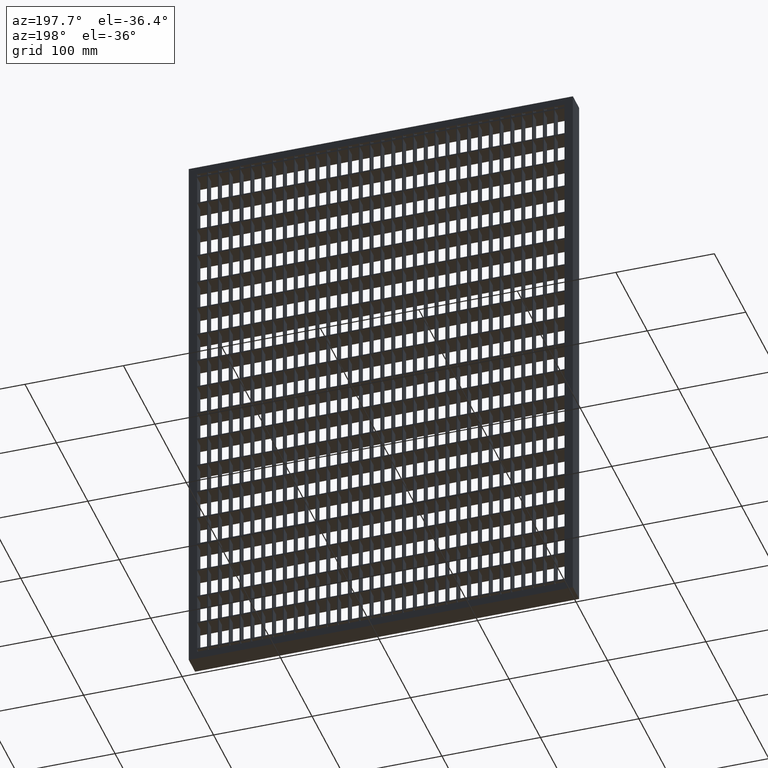
[diagram: clean part render]
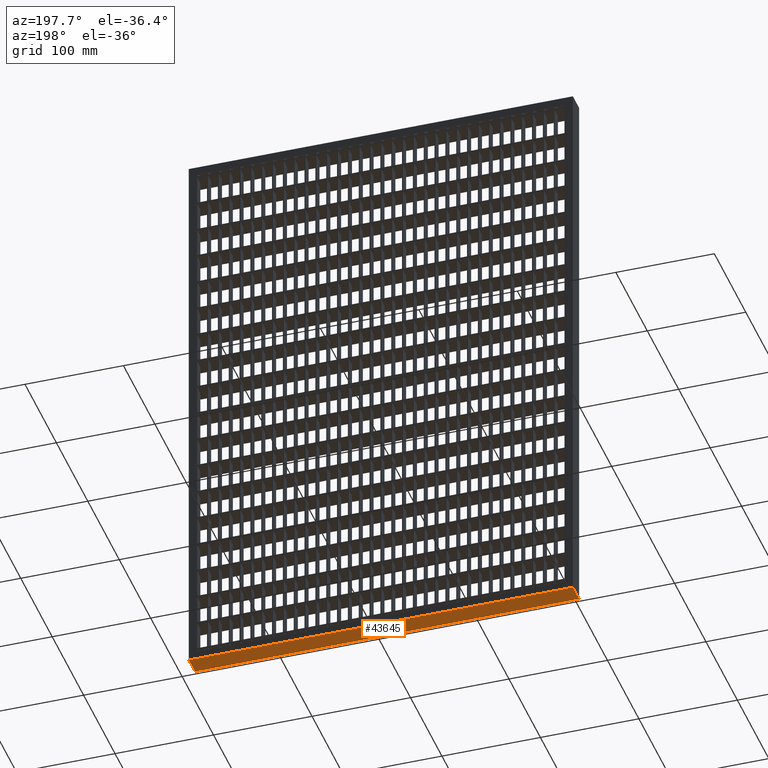
[diagram: same view with one face highlighted and labeled with its STEP entity id]
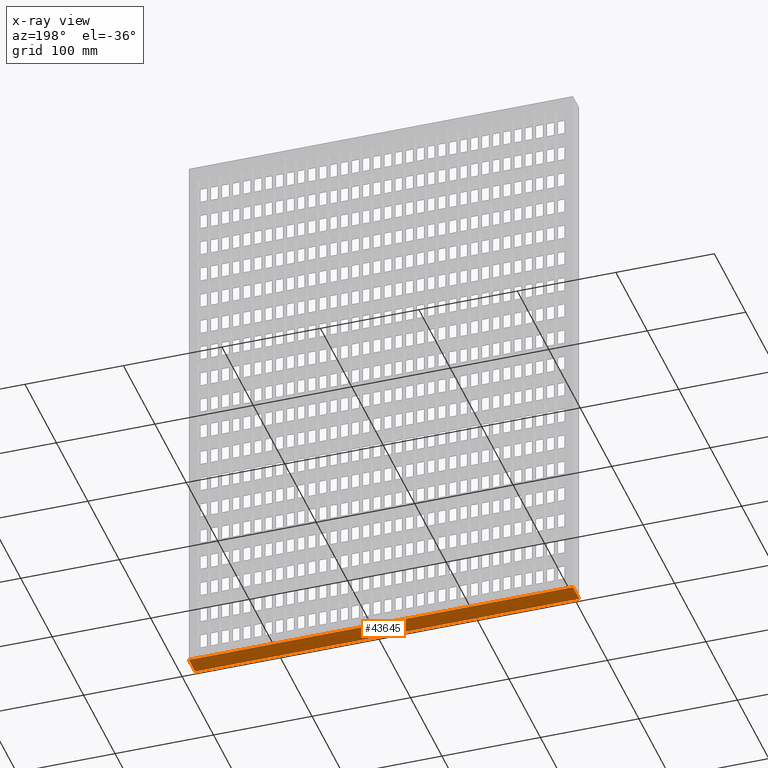
[diagram: x-ray of the same camera — body ghosted, the highlighted face saturated]
A machine part, auxiliary view. The second image highlights one B-rep face of the part: STEP entity #43645.
The next image is the same camera in x-ray: the body ghosted, the highlighted face saturated — about 0% of this face is hidden behind the body in this view.
In plain terms, the highlighted planar face has unit normal (-0, 0, 1).
Its self-contained STEP definition (entity closure, byte-faithful):
#63 = EDGE_CURVE ( 'NONE', #39504, #46756, #59235, .T. ) ;
#1682 = EDGE_CURVE ( 'NONE', #39504, #88319, #49802, .T. ) ;
#2566 = VECTOR ( 'NONE', #74039, 1000.000000000000000 ) ;
#4561 = DIRECTION ( 'NONE',  ( 3.061616997868382600E-016, 1.000000000000000000, -3.061616997868382600E-016 ) ) ;
#6208 = VECTOR ( 'NONE', #18565, 1000.000000000000000 ) ;
#13974 = CARTESIAN_POINT ( 'NONE',  ( 3.061616997868383000E-015, -10.00000000000000000, -590.0000000000000000 ) ) ;
#18293 = EDGE_LOOP ( 'NONE', ( #72381, #69845, #83531, #72443 ) ) ;
#18565 = DIRECTION ( 'NONE',  ( 1.000000000000000000, 0.0000000000000000000, 0.0000000000000000000 ) ) ;
#20936 = EDGE_CURVE ( 'NONE', #88319, #21683, #84935, .T. ) ;
#21683 = VERTEX_POINT ( 'NONE', #49776 ) ;
#35151 = LINE ( 'NONE', #41418, #89586 ) ;
#39504 = VERTEX_POINT ( 'NONE', #59544 ) ;
#41418 = CARTESIAN_POINT ( 'NONE',  ( 390.0000000000000000, 9.999999999999895200, -590.0000000000000000 ) ) ;
#43645 = ADVANCED_FACE ( 'NONE', ( #71230 ), #80067, .F. ) ;
#46756 = VERTEX_POINT ( 'NONE', #52782 ) ;
#48856 = DIRECTION ( 'NONE',  ( 3.061616997868382600E-016, -1.000000000000000000, 3.061616997868382600E-016 ) ) ;
#48931 = CARTESIAN_POINT ( 'NONE',  ( 3.061616997868383000E-015, -10.00000000000000000, -590.0000000000000000 ) ) ;
#49776 = CARTESIAN_POINT ( 'NONE',  ( 389.9999999999998900, -10.00000000000000000, -590.0000000000000000 ) ) ;
#49802 = LINE ( 'NONE', #85781, #61388 ) ;
#52782 = CARTESIAN_POINT ( 'NONE',  ( 389.9999999999999400, 10.00000000000000200, -590.0000000000000000 ) ) ;
#54163 = EDGE_CURVE ( 'NONE', #21683, #46756, #35151, .T. ) ;
#59235 = LINE ( 'NONE', #88306, #2566 ) ;
#59544 = CARTESIAN_POINT ( 'NONE',  ( -3.061616997868381900E-015, 10.00000000000000000, -590.0000000000000000 ) ) ;
#61388 = VECTOR ( 'NONE', #48856, 1000.000000000000000 ) ;
#64880 = DIRECTION ( 'NONE',  ( -0.0000000000000000000, 3.061616997868382600E-016, 1.000000000000000000 ) ) ;
#65512 = CARTESIAN_POINT ( 'NONE',  ( -3.061616997868386200E-015, 10.00000000000001400, -590.0000000000000000 ) ) ;
#69845 = ORIENTED_EDGE ( 'NONE', *, *, #20936, .F. ) ;
#71230 = FACE_OUTER_BOUND ( 'NONE', #18293, .T. ) ;
#72290 = DIRECTION ( 'NONE',  ( 0.0000000000000000000, -1.000000000000000000, 3.061616997868382600E-016 ) ) ;
#72381 = ORIENTED_EDGE ( 'NONE', *, *, #54163, .F. ) ;
#72443 = ORIENTED_EDGE ( 'NONE', *, *, #63, .T. ) ;
#74039 = DIRECTION ( 'NONE',  ( 1.000000000000000000, 0.0000000000000000000, 0.0000000000000000000 ) ) ;
#76341 = AXIS2_PLACEMENT_3D ( 'NONE', #65512, #64880, #72290 ) ;
#80067 = PLANE ( 'NONE',  #76341 ) ;
#83531 = ORIENTED_EDGE ( 'NONE', *, *, #1682, .F. ) ;
#84935 = LINE ( 'NONE', #48931, #6208 ) ;
#85781 = CARTESIAN_POINT ( 'NONE',  ( -3.061616997868386200E-015, 10.00000000000001400, -590.0000000000000000 ) ) ;
#88306 = CARTESIAN_POINT ( 'NONE',  ( -3.061616997868381900E-015, 10.00000000000000000, -590.0000000000000000 ) ) ;
#88319 = VERTEX_POINT ( 'NONE', #13974 ) ;
#89586 = VECTOR ( 'NONE', #4561, 1000.000000000000000 ) ;